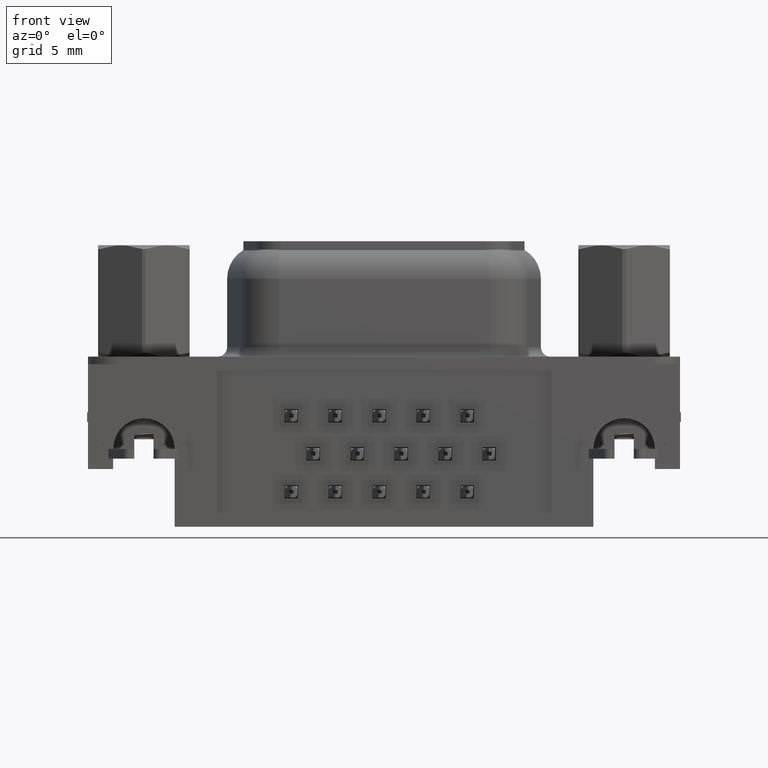
[diagram: clean part render]
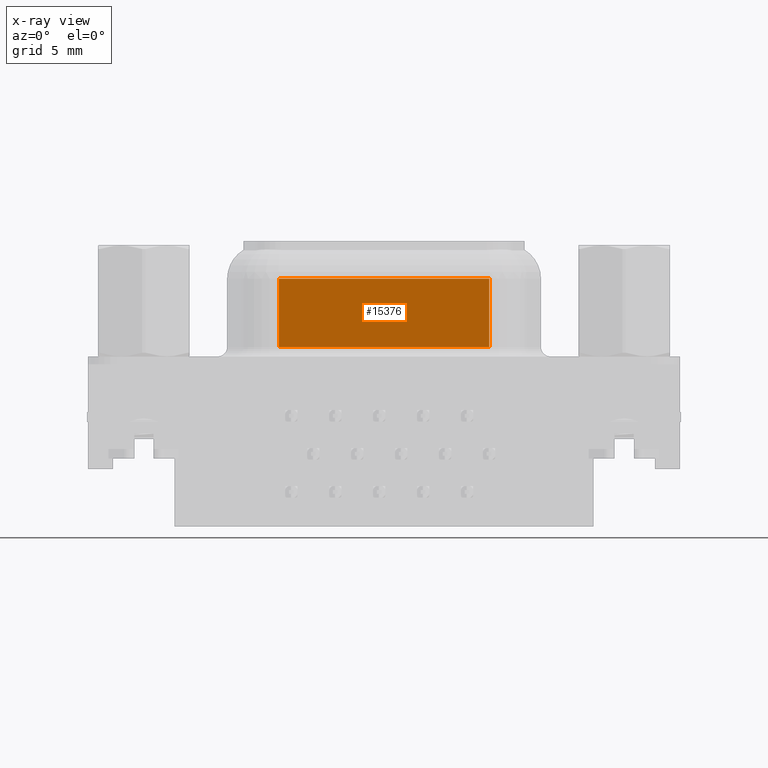
[diagram: x-ray — body ghosted, one internal face saturated and labeled with its STEP entity id]
A machine part, front view, then the same camera in x-ray: the body is ghosted and one INTERNAL B-rep face — a face not visible from any outside direction — is saturated and labeled: STEP entity #15376.
In plain terms, the highlighted planar face has unit normal (0, 1, 0).
Its self-contained STEP definition (entity closure, byte-faithful):
#1041 = VERTEX_POINT ( 'NONE', #23739 ) ;
#1069 = AXIS2_PLACEMENT_3D ( 'NONE', #30478, #17719, #2483 ) ;
#1799 = CARTESIAN_POINT ( 'NONE',  ( 7.017675224762987400, -3.550000000000001200, 6.200000000000000200 ) ) ;
#2483 = DIRECTION ( 'NONE',  ( -1.000000000000000000, 1.583549951081495900E-016, 0.0000000000000000000 ) ) ;
#2684 = CARTESIAN_POINT ( 'NONE',  ( 17.97232477523701300, -3.550000000000005600, 4.450000000000000200 ) ) ;
#4028 = LINE ( 'NONE', #25747, #23508 ) ;
#4708 = FACE_OUTER_BOUND ( 'NONE', #19063, .T. ) ;
#4923 = ORIENTED_EDGE ( 'NONE', *, *, #5115, .F. ) ;
#5115 = EDGE_CURVE ( 'NONE', #23742, #11896, #20431, .T. ) ;
#10023 = CARTESIAN_POINT ( 'NONE',  ( 17.97232477523701300, -3.550000000000002900, 4.450000000000000200 ) ) ;
#10300 = VECTOR ( 'NONE', #24698, 1000.000000000000000 ) ;
#10751 = VECTOR ( 'NONE', #13834, 1000.000000000000000 ) ;
#11896 = VERTEX_POINT ( 'NONE', #26857 ) ;
#12315 = ORIENTED_EDGE ( 'NONE', *, *, #31070, .F. ) ;
#13834 = DIRECTION ( 'NONE',  ( -0.0000000000000000000, -0.0000000000000000000, -1.000000000000000000 ) ) ;
#15150 = PLANE ( 'NONE',  #1069 ) ;
#15376 = ADVANCED_FACE ( 'NONE', ( #4708 ), #15150, .T. ) ;
#17094 = LINE ( 'NONE', #1799, #10300 ) ;
#17719 = DIRECTION ( 'NONE',  ( 1.583549951081495900E-016, 1.000000000000000000, -0.0000000000000000000 ) ) ;
#19063 = EDGE_LOOP ( 'NONE', ( #31062, #12315, #21019, #4923 ) ) ;
#19633 = VECTOR ( 'NONE', #22477, 1000.000000000000000 ) ;
#20431 = LINE ( 'NONE', #10023, #19633 ) ;
#21019 = ORIENTED_EDGE ( 'NONE', *, *, #21756, .F. ) ;
#21756 = EDGE_CURVE ( 'NONE', #11896, #1041, #17094, .T. ) ;
#22477 = DIRECTION ( 'NONE',  ( -1.000000000000000000, 1.583549951081495900E-016, 0.0000000000000000000 ) ) ;
#23226 = CARTESIAN_POINT ( 'NONE',  ( 17.97232477523701300, -3.550000000000005600, 0.8999999999999998000 ) ) ;
#23508 = VECTOR ( 'NONE', #28390, 1000.000000000000000 ) ;
#23739 = CARTESIAN_POINT ( 'NONE',  ( 7.017675224762987400, -3.550000000000001200, 0.8999999999999998000 ) ) ;
#23742 = VERTEX_POINT ( 'NONE', #2684 ) ;
#24698 = DIRECTION ( 'NONE',  ( -0.0000000000000000000, -0.0000000000000000000, -1.000000000000000000 ) ) ;
#25747 = CARTESIAN_POINT ( 'NONE',  ( 17.97232477523701300, -3.550000000000002900, 0.8999999999999998000 ) ) ;
#26504 = CARTESIAN_POINT ( 'NONE',  ( 17.97232477523701300, -3.550000000000005600, 6.200000000000000200 ) ) ;
#26857 = CARTESIAN_POINT ( 'NONE',  ( 7.017675224762987400, -3.550000000000001200, 4.450000000000000200 ) ) ;
#28390 = DIRECTION ( 'NONE',  ( 1.000000000000000000, -1.583549951081495900E-016, -0.0000000000000000000 ) ) ;
#30478 = CARTESIAN_POINT ( 'NONE',  ( 17.97232477523701300, -3.550000000000002900, 6.200000000000000200 ) ) ;
#31062 = ORIENTED_EDGE ( 'NONE', *, *, #31577, .T. ) ;
#31070 = EDGE_CURVE ( 'NONE', #1041, #31945, #4028, .T. ) ;
#31151 = LINE ( 'NONE', #26504, #10751 ) ;
#31577 = EDGE_CURVE ( 'NONE', #23742, #31945, #31151, .T. ) ;
#31945 = VERTEX_POINT ( 'NONE', #23226 ) ;